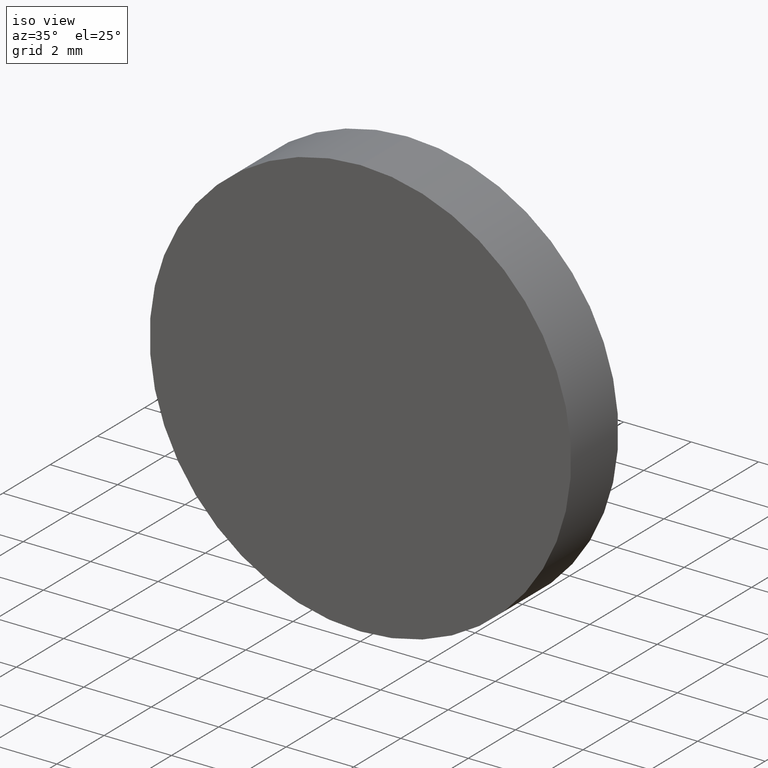
[diagram: clean part render]
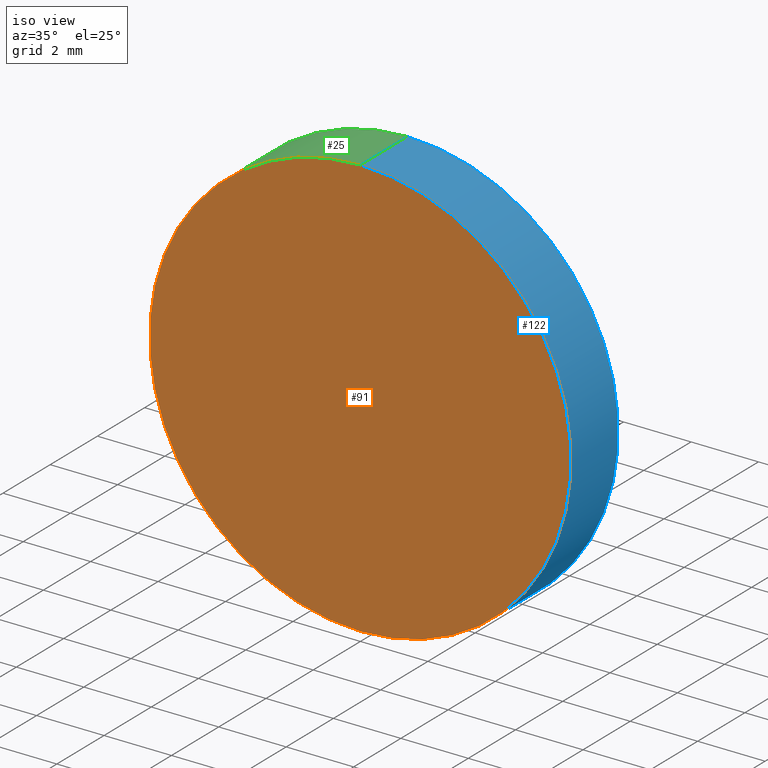
[diagram: same view with three faces highlighted in distinct colors, each labeled with its STEP entity id]
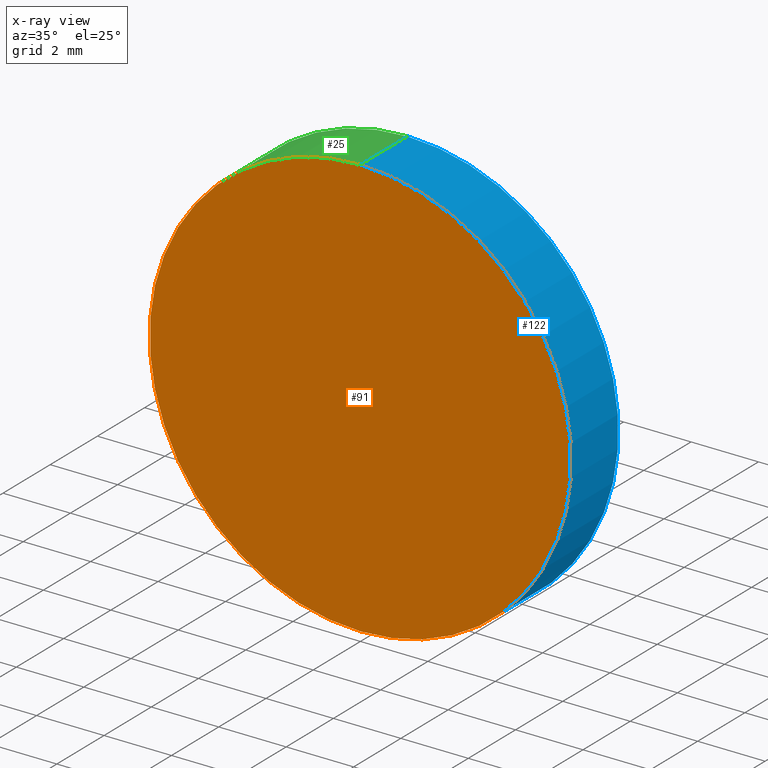
[diagram: x-ray of the same camera — body ghosted, the three highlighted faces saturated]
A machine part, iso view with three faces highlighted in distinct colors.
The next image is the same camera in x-ray (body ghosted, the three faces saturated) — at least one of them is partly hidden behind the body in this view.
Their STEP definitions:

[orange] entity #91 — the highlighted planar face has unit normal (0, 1, 0).
#8 = AXIS2_PLACEMENT_3D ( 'NONE', #66, #132, #77 ) ;
#11 = CARTESIAN_POINT ( 'NONE',  ( 0.0000000000000000000, 0.0000000000000000000, 0.0000000000000000000 ) ) ;
#17 = CIRCLE ( 'NONE', #8, 6.250000000000000000 ) ;
#24 = PLANE ( 'NONE',  #133 ) ;
#27 = DIRECTION ( 'NONE',  ( 0.0000000000000000000, 1.000000000000000000, 0.0000000000000000000 ) ) ;
#33 = DIRECTION ( 'NONE',  ( 0.0000000000000000000, 0.0000000000000000000, 1.000000000000000000 ) ) ;
#35 = EDGE_CURVE ( 'NONE', #55, #85, #110, .T. ) ;
#38 = ORIENTED_EDGE ( 'NONE', *, *, #82, .F. ) ;
#44 = DIRECTION ( 'NONE',  ( 0.0000000000000000000, -0.0000000000000000000, 1.000000000000000000 ) ) ;
#55 = VERTEX_POINT ( 'NONE', #104 ) ;
#58 = CARTESIAN_POINT ( 'NONE',  ( 0.0000000000000000000, 0.0000000000000000000, -6.250000000000000000 ) ) ;
#66 = CARTESIAN_POINT ( 'NONE',  ( 0.0000000000000000000, 0.0000000000000000000, 0.0000000000000000000 ) ) ;
#68 = FACE_OUTER_BOUND ( 'NONE', #78, .T. ) ;
#70 = CARTESIAN_POINT ( 'NONE',  ( 0.0000000000000000000, 0.0000000000000000000, 0.0000000000000000000 ) ) ;
#77 = DIRECTION ( 'NONE',  ( 0.0000000000000000000, 0.0000000000000000000, 1.000000000000000000 ) ) ;
#78 = EDGE_LOOP ( 'NONE', ( #38, #115 ) ) ;
#82 = EDGE_CURVE ( 'NONE', #85, #55, #17, .T. ) ;
#85 = VERTEX_POINT ( 'NONE', #58 ) ;
#91 = ADVANCED_FACE ( 'NONE', ( #68 ), #24, .F. ) ;
#103 = DIRECTION ( 'NONE',  ( 0.0000000000000000000, 1.000000000000000000, 0.0000000000000000000 ) ) ;
#104 = CARTESIAN_POINT ( 'NONE',  ( 7.654042494670957600E-016, 0.0000000000000000000, 6.250000000000000000 ) ) ;
#110 = CIRCLE ( 'NONE', #120, 6.250000000000000000 ) ;
#115 = ORIENTED_EDGE ( 'NONE', *, *, #35, .F. ) ;
#120 = AXIS2_PLACEMENT_3D ( 'NONE', #70, #103, #33 ) ;
#132 = DIRECTION ( 'NONE',  ( 0.0000000000000000000, 1.000000000000000000, 0.0000000000000000000 ) ) ;
#133 = AXIS2_PLACEMENT_3D ( 'NONE', #11, #27, #44 ) ;

[blue] entity #122 — the highlighted cylindrical surface (partial cylindrical patch) has radius 6.25 mm, axis along (-0, -1, -0).
#5 = EDGE_CURVE ( 'NONE', #107, #90, #106, .T. ) ;
#10 = VECTOR ( 'NONE', #128, 1000.000000000000000 ) ;
#13 = DIRECTION ( 'NONE',  ( -0.0000000000000000000, -1.000000000000000000, -0.0000000000000000000 ) ) ;
#14 = EDGE_CURVE ( 'NONE', #90, #85, #54, .T. ) ;
#19 = CARTESIAN_POINT ( 'NONE',  ( 7.654042494670957600E-016, 2.000000000000000000, 6.250000000000000000 ) ) ;
#32 = VECTOR ( 'NONE', #99, 1000.000000000000000 ) ;
#33 = DIRECTION ( 'NONE',  ( 0.0000000000000000000, 0.0000000000000000000, 1.000000000000000000 ) ) ;
#35 = EDGE_CURVE ( 'NONE', #55, #85, #110, .T. ) ;
#36 = DIRECTION ( 'NONE',  ( 0.0000000000000000000, 1.000000000000000000, 0.0000000000000000000 ) ) ;
#42 = CARTESIAN_POINT ( 'NONE',  ( 0.0000000000000000000, 2.000000000000000000, -6.250000000000000000 ) ) ;
#46 = DIRECTION ( 'NONE',  ( 0.0000000000000000000, 0.0000000000000000000, -1.000000000000000000 ) ) ;
#53 = AXIS2_PLACEMENT_3D ( 'NONE', #62, #36, #105 ) ;
#54 = LINE ( 'NONE', #113, #10 ) ;
#55 = VERTEX_POINT ( 'NONE', #104 ) ;
#58 = CARTESIAN_POINT ( 'NONE',  ( 0.0000000000000000000, 0.0000000000000000000, -6.250000000000000000 ) ) ;
#62 = CARTESIAN_POINT ( 'NONE',  ( 0.0000000000000000000, 2.000000000000000000, 0.0000000000000000000 ) ) ;
#64 = ORIENTED_EDGE ( 'NONE', *, *, #5, .F. ) ;
#70 = CARTESIAN_POINT ( 'NONE',  ( 0.0000000000000000000, 0.0000000000000000000, 0.0000000000000000000 ) ) ;
#74 = EDGE_CURVE ( 'NONE', #107, #55, #138, .T. ) ;
#81 = CARTESIAN_POINT ( 'NONE',  ( 7.654042494670957600E-016, 2.000000000000000000, 6.250000000000000000 ) ) ;
#85 = VERTEX_POINT ( 'NONE', #58 ) ;
#90 = VERTEX_POINT ( 'NONE', #42 ) ;
#94 = FACE_OUTER_BOUND ( 'NONE', #118, .T. ) ;
#95 = ORIENTED_EDGE ( 'NONE', *, *, #74, .T. ) ;
#99 = DIRECTION ( 'NONE',  ( -0.0000000000000000000, -1.000000000000000000, -0.0000000000000000000 ) ) ;
#102 = ORIENTED_EDGE ( 'NONE', *, *, #35, .T. ) ;
#103 = DIRECTION ( 'NONE',  ( 0.0000000000000000000, 1.000000000000000000, 0.0000000000000000000 ) ) ;
#104 = CARTESIAN_POINT ( 'NONE',  ( 7.654042494670957600E-016, 0.0000000000000000000, 6.250000000000000000 ) ) ;
#105 = DIRECTION ( 'NONE',  ( 0.0000000000000000000, 0.0000000000000000000, 1.000000000000000000 ) ) ;
#106 = CIRCLE ( 'NONE', #53, 6.250000000000000000 ) ;
#107 = VERTEX_POINT ( 'NONE', #81 ) ;
#108 = AXIS2_PLACEMENT_3D ( 'NONE', #109, #13, #46 ) ;
#109 = CARTESIAN_POINT ( 'NONE',  ( 0.0000000000000000000, 2.000000000000000000, 0.0000000000000000000 ) ) ;
#110 = CIRCLE ( 'NONE', #120, 6.250000000000000000 ) ;
#113 = CARTESIAN_POINT ( 'NONE',  ( 0.0000000000000000000, 2.000000000000000000, -6.250000000000000000 ) ) ;
#118 = EDGE_LOOP ( 'NONE', ( #64, #95, #102, #135 ) ) ;
#120 = AXIS2_PLACEMENT_3D ( 'NONE', #70, #103, #33 ) ;
#121 = CYLINDRICAL_SURFACE ( 'NONE', #108, 6.250000000000000000 ) ;
#122 = ADVANCED_FACE ( 'NONE', ( #94 ), #121, .T. ) ;
#128 = DIRECTION ( 'NONE',  ( -0.0000000000000000000, -1.000000000000000000, -0.0000000000000000000 ) ) ;
#135 = ORIENTED_EDGE ( 'NONE', *, *, #14, .F. ) ;
#138 = LINE ( 'NONE', #19, #32 ) ;

[green] entity #25 — the highlighted cylindrical surface (partial cylindrical patch) has radius 6.25 mm, axis along (-0, -1, -0).
#4 = DIRECTION ( 'NONE',  ( 0.0000000000000000000, 0.0000000000000000000, -1.000000000000000000 ) ) ;
#7 = ORIENTED_EDGE ( 'NONE', *, *, #23, .F. ) ;
#8 = AXIS2_PLACEMENT_3D ( 'NONE', #66, #132, #77 ) ;
#10 = VECTOR ( 'NONE', #128, 1000.000000000000000 ) ;
#14 = EDGE_CURVE ( 'NONE', #90, #85, #54, .T. ) ;
#17 = CIRCLE ( 'NONE', #8, 6.250000000000000000 ) ;
#19 = CARTESIAN_POINT ( 'NONE',  ( 7.654042494670957600E-016, 2.000000000000000000, 6.250000000000000000 ) ) ;
#23 = EDGE_CURVE ( 'NONE', #90, #107, #45, .T. ) ;
#25 = ADVANCED_FACE ( 'NONE', ( #49 ), #56, .T. ) ;
#32 = VECTOR ( 'NONE', #99, 1000.000000000000000 ) ;
#34 = DIRECTION ( 'NONE',  ( 0.0000000000000000000, 0.0000000000000000000, 1.000000000000000000 ) ) ;
#42 = CARTESIAN_POINT ( 'NONE',  ( 0.0000000000000000000, 2.000000000000000000, -6.250000000000000000 ) ) ;
#45 = CIRCLE ( 'NONE', #87, 6.250000000000000000 ) ;
#49 = FACE_OUTER_BOUND ( 'NONE', #69, .T. ) ;
#51 = CARTESIAN_POINT ( 'NONE',  ( 0.0000000000000000000, 2.000000000000000000, 0.0000000000000000000 ) ) ;
#54 = LINE ( 'NONE', #113, #10 ) ;
#55 = VERTEX_POINT ( 'NONE', #104 ) ;
#56 = CYLINDRICAL_SURFACE ( 'NONE', #61, 6.250000000000000000 ) ;
#57 = ORIENTED_EDGE ( 'NONE', *, *, #14, .T. ) ;
#58 = CARTESIAN_POINT ( 'NONE',  ( 0.0000000000000000000, 0.0000000000000000000, -6.250000000000000000 ) ) ;
#61 = AXIS2_PLACEMENT_3D ( 'NONE', #119, #137, #4 ) ;
#66 = CARTESIAN_POINT ( 'NONE',  ( 0.0000000000000000000, 0.0000000000000000000, 0.0000000000000000000 ) ) ;
#69 = EDGE_LOOP ( 'NONE', ( #139, #7, #57, #131 ) ) ;
#74 = EDGE_CURVE ( 'NONE', #107, #55, #138, .T. ) ;
#77 = DIRECTION ( 'NONE',  ( 0.0000000000000000000, 0.0000000000000000000, 1.000000000000000000 ) ) ;
#81 = CARTESIAN_POINT ( 'NONE',  ( 7.654042494670957600E-016, 2.000000000000000000, 6.250000000000000000 ) ) ;
#82 = EDGE_CURVE ( 'NONE', #85, #55, #17, .T. ) ;
#85 = VERTEX_POINT ( 'NONE', #58 ) ;
#87 = AXIS2_PLACEMENT_3D ( 'NONE', #51, #112, #34 ) ;
#90 = VERTEX_POINT ( 'NONE', #42 ) ;
#99 = DIRECTION ( 'NONE',  ( -0.0000000000000000000, -1.000000000000000000, -0.0000000000000000000 ) ) ;
#104 = CARTESIAN_POINT ( 'NONE',  ( 7.654042494670957600E-016, 0.0000000000000000000, 6.250000000000000000 ) ) ;
#107 = VERTEX_POINT ( 'NONE', #81 ) ;
#112 = DIRECTION ( 'NONE',  ( 0.0000000000000000000, 1.000000000000000000, 0.0000000000000000000 ) ) ;
#113 = CARTESIAN_POINT ( 'NONE',  ( 0.0000000000000000000, 2.000000000000000000, -6.250000000000000000 ) ) ;
#119 = CARTESIAN_POINT ( 'NONE',  ( 0.0000000000000000000, 2.000000000000000000, 0.0000000000000000000 ) ) ;
#128 = DIRECTION ( 'NONE',  ( -0.0000000000000000000, -1.000000000000000000, -0.0000000000000000000 ) ) ;
#131 = ORIENTED_EDGE ( 'NONE', *, *, #82, .T. ) ;
#132 = DIRECTION ( 'NONE',  ( 0.0000000000000000000, 1.000000000000000000, 0.0000000000000000000 ) ) ;
#137 = DIRECTION ( 'NONE',  ( -0.0000000000000000000, -1.000000000000000000, -0.0000000000000000000 ) ) ;
#138 = LINE ( 'NONE', #19, #32 ) ;
#139 = ORIENTED_EDGE ( 'NONE', *, *, #74, .F. ) ;